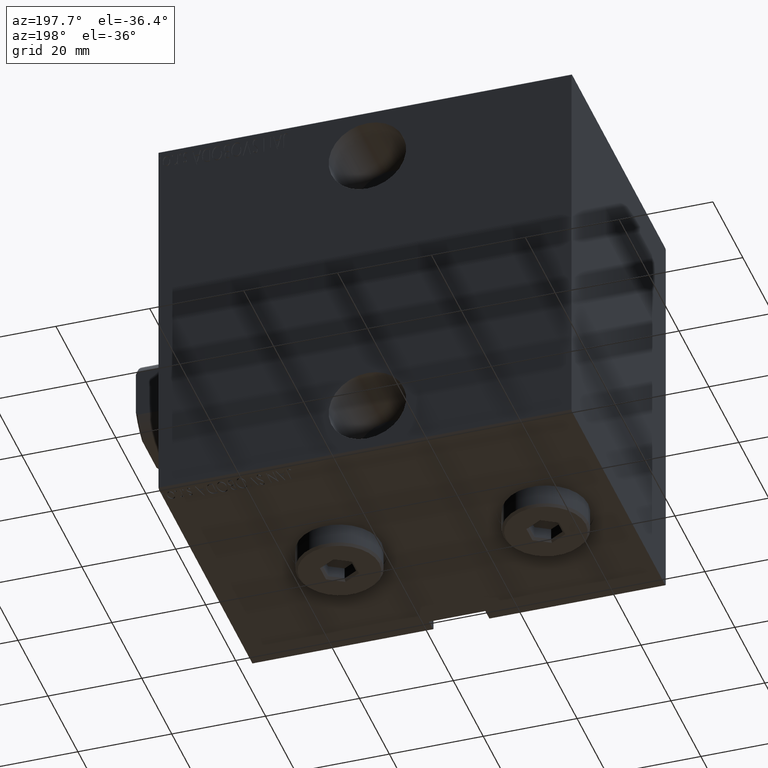
[diagram: clean part render]
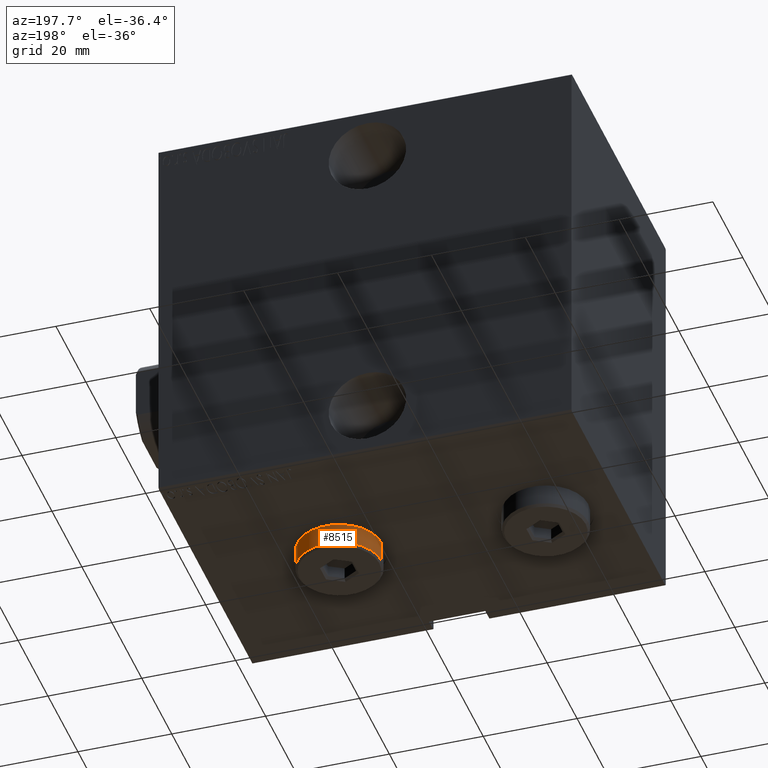
[diagram: same view with one face highlighted and labeled with its STEP entity id]
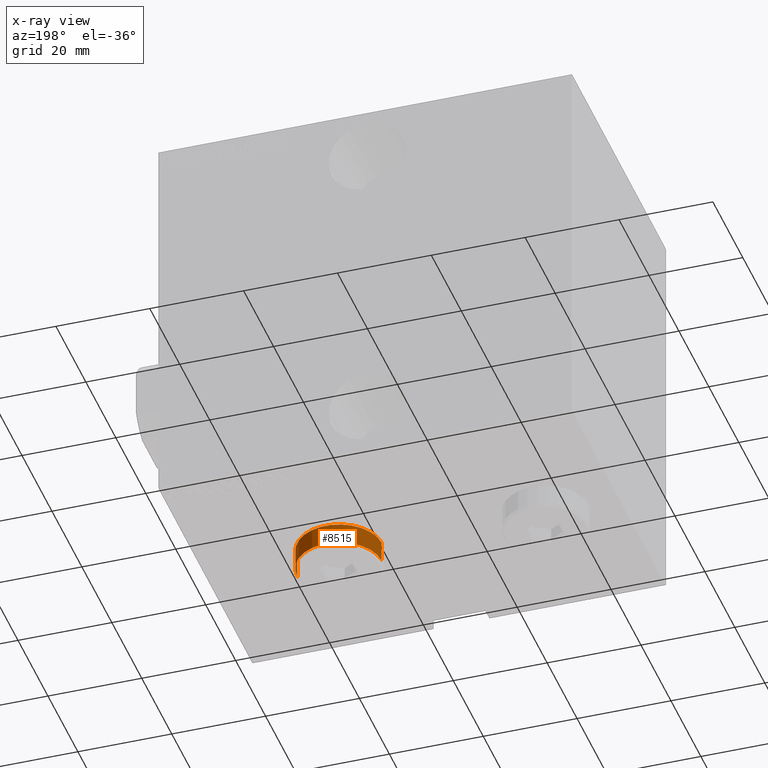
[diagram: x-ray of the same camera — body ghosted, the highlighted face saturated]
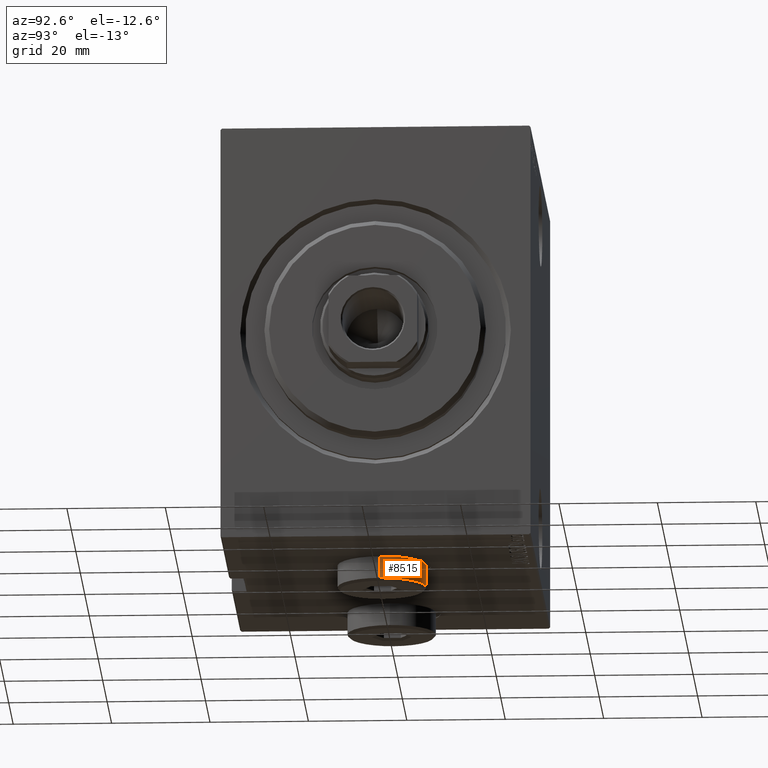
[diagram: same view with one face highlighted and labeled with its STEP entity id]
A machine part, auxiliary view. The second image highlights one B-rep face of the part: STEP entity #8515.
The next image is the same camera in x-ray: the body ghosted, the highlighted face saturated — about 0% of this face is hidden behind the body in this view.
A second angle (auxiliary view) of the same face is appended — the face is thin or edge-on in the first view.
In plain terms, the highlighted cylindrical surface (partial cylindrical patch) has radius 9 mm, axis along (0, 0, 1).
Its self-contained STEP definition (entity closure, byte-faithful):
#2870 = VERTEX_POINT ( 'NONE', #31877 ) ;
#2872 = EDGE_CURVE ( 'NONE', #18206, #24785, #11620, .T. ) ;
#4699 = FACE_OUTER_BOUND ( 'NONE', #8191, .T. ) ;
#5122 = VECTOR ( 'NONE', #37258, 1000.000000000000000 ) ;
#5275 = DIRECTION ( 'NONE',  ( 1.000000000000000000, 0.000000000000000000, 0.000000000000000000 ) ) ;
#7171 = EDGE_CURVE ( 'NONE', #18206, #2870, #30572, .T. ) ;
#8137 = CARTESIAN_POINT ( 'NONE',  ( 0.000000000000000000, 0.000000000000000000, 4.500000000000006217 ) ) ;
#8191 = EDGE_LOOP ( 'NONE', ( #41159, #24177, #10872, #28230 ) ) ;
#8280 = CARTESIAN_POINT ( 'NONE',  ( 9.000000000000001776, 1.102182119232617911E-15, 5.000000000000000000 ) ) ;
#8386 = CARTESIAN_POINT ( 'NONE',  ( 0.000000000000000000, 0.000000000000000000, 0.000000000000000000 ) ) ;
#8515 = ADVANCED_FACE ( 'NONE', ( #4699 ), #28509, .T. ) ;
#10872 = ORIENTED_EDGE ( 'NONE', *, *, #12087, .T. ) ;
#11372 = CARTESIAN_POINT ( 'NONE',  ( 0.000000000000000000, 0.000000000000000000, 5.000000000000000000 ) ) ;
#11620 = LINE ( 'NONE', #8280, #13409 ) ;
#12087 = EDGE_CURVE ( 'NONE', #2870, #39729, #30782, .T. ) ;
#13409 = VECTOR ( 'NONE', #18728, 1000.000000000000000 ) ;
#15376 = DIRECTION ( 'NONE',  ( -1.000000000000000000, 0.000000000000000000, 0.000000000000000000 ) ) ;
#18206 = VERTEX_POINT ( 'NONE', #33728 ) ;
#18495 = CARTESIAN_POINT ( 'NONE',  ( -9.000000000000001776, 0.000000000000000000, 0.000000000000000000 ) ) ;
#18728 = DIRECTION ( 'NONE',  ( -0.000000000000000000, -0.000000000000000000, -1.000000000000000000 ) ) ;
#21945 = CIRCLE ( 'NONE', #42573, 9.000000000000001776 ) ;
#22660 = CARTESIAN_POINT ( 'NONE',  ( 9.000000000000001776, 1.102182119232617911E-15, 0.000000000000000000 ) ) ;
#24177 = ORIENTED_EDGE ( 'NONE', *, *, #7171, .T. ) ;
#24785 = VERTEX_POINT ( 'NONE', #22660 ) ;
#28230 = ORIENTED_EDGE ( 'NONE', *, *, #32268, .T. ) ;
#28287 = DIRECTION ( 'NONE',  ( -0.000000000000000000, -0.000000000000000000, -1.000000000000000000 ) ) ;
#28509 = CYLINDRICAL_SURFACE ( 'NONE', #37731, 9.000000000000001776 ) ;
#30572 = CIRCLE ( 'NONE', #43364, 9.000000000000001776 ) ;
#30782 = LINE ( 'NONE', #33918, #5122 ) ;
#31877 = CARTESIAN_POINT ( 'NONE',  ( -9.000000000000001776, 0.000000000000000000, 4.500000000000006217 ) ) ;
#32268 = EDGE_CURVE ( 'NONE', #39729, #24785, #21945, .T. ) ;
#33728 = CARTESIAN_POINT ( 'NONE',  ( 9.000000000000001776, 1.102182119232617911E-15, 4.500000000000006217 ) ) ;
#33918 = CARTESIAN_POINT ( 'NONE',  ( -9.000000000000001776, 0.000000000000000000, 5.000000000000000000 ) ) ;
#35303 = DIRECTION ( 'NONE',  ( 1.000000000000000000, 0.000000000000000000, 0.000000000000000000 ) ) ;
#37258 = DIRECTION ( 'NONE',  ( -0.000000000000000000, -0.000000000000000000, -1.000000000000000000 ) ) ;
#37731 = AXIS2_PLACEMENT_3D ( 'NONE', #11372, #28287, #15376 ) ;
#38427 = DIRECTION ( 'NONE',  ( 0.000000000000000000, 0.000000000000000000, -1.000000000000000000 ) ) ;
#39574 = DIRECTION ( 'NONE',  ( 0.000000000000000000, 0.000000000000000000, 1.000000000000000000 ) ) ;
#39729 = VERTEX_POINT ( 'NONE', #18495 ) ;
#41159 = ORIENTED_EDGE ( 'NONE', *, *, #2872, .F. ) ;
#42573 = AXIS2_PLACEMENT_3D ( 'NONE', #8386, #39574, #5275 ) ;
#43364 = AXIS2_PLACEMENT_3D ( 'NONE', #8137, #38427, #35303 ) ;